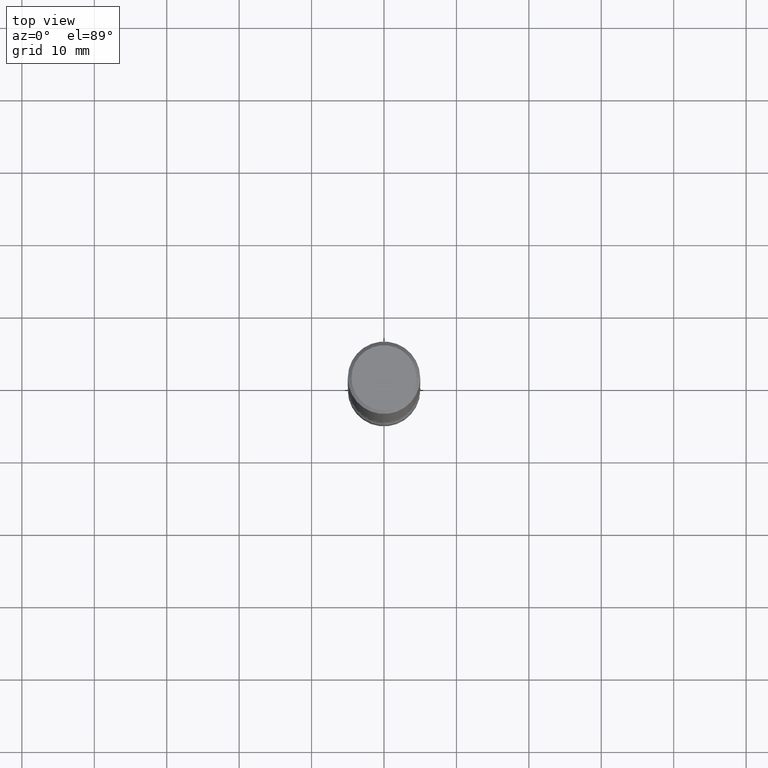
[diagram: clean part render]
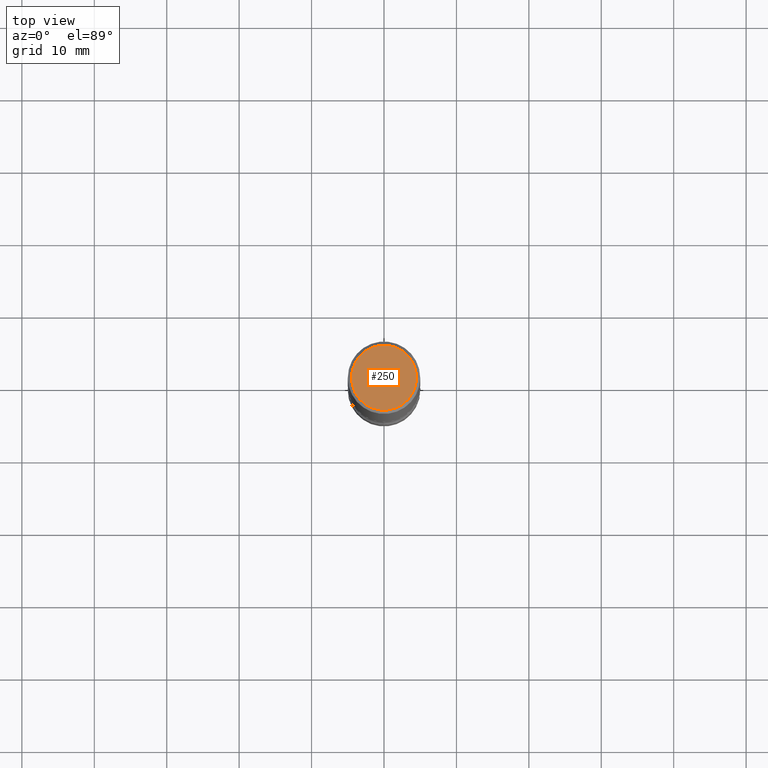
[diagram: same view with one face highlighted and labeled with its STEP entity id]
A machine part, top view. The second image highlights one B-rep face of the part: STEP entity #250.
In plain terms, the highlighted planar face has unit normal (0, -0, -1).
Its self-contained STEP definition (entity closure, byte-faithful):
#3 = AXIS2_PLACEMENT_3D ( 'NONE', #111, #400, #6 ) ;
#6 = DIRECTION ( 'NONE',  ( -1.000000000000000000, 6.982962677686265922E-15, -4.876176775795935793E-29 ) ) ;
#22 = EDGE_CURVE ( 'NONE', #365, #119, #503, .T. ) ;
#31 = EDGE_LOOP ( 'NONE', ( #404, #123 ) ) ;
#37 = DIRECTION ( 'NONE',  ( 1.000000000000000000, -6.982962677686266711E-15, 4.875932113059883053E-29 ) ) ;
#52 = DIRECTION ( 'NONE',  ( 1.000000000000000000, -6.982962677686266711E-15, 4.875932113059883053E-29 ) ) ;
#96 = PLANE ( 'NONE',  #3 ) ;
#103 = CARTESIAN_POINT ( 'NONE',  ( -1.043851414335219820E-46, 1.490343170380447200E-32, 4.268512490100411279E-18 ) ) ;
#111 = CARTESIAN_POINT ( 'NONE',  ( 1.234936949548814815E-15, 0.1768499999999998129, -6.153342185293594620E-16 ) ) ;
#119 = VERTEX_POINT ( 'NONE', #476 ) ;
#123 = ORIENTED_EDGE ( 'NONE', *, *, #22, .T. ) ;
#190 = AXIS2_PLACEMENT_3D ( 'NONE', #103, #403, #52 ) ;
#211 = CIRCLE ( 'NONE', #465, 0.1768499999999998129 ) ;
#239 = CARTESIAN_POINT ( 'NONE',  ( 0.1768499999999998129, -1.316798864272041155E-15, 4.268512490109333727E-18 ) ) ;
#250 = ADVANCED_FACE ( 'NONE', ( #530 ), #96, .F. ) ;
#365 = VERTEX_POINT ( 'NONE', #239 ) ;
#400 = DIRECTION ( 'NONE',  ( 2.438088387897960049E-29, -3.491481338843145188E-15, -1.000000000000000000 ) ) ;
#403 = DIRECTION ( 'NONE',  ( -2.445468806185136597E-29, 3.491481338843145583E-15, 1.000000000000000000 ) ) ;
#404 = ORIENTED_EDGE ( 'NONE', *, *, #472, .T. ) ;
#462 = CARTESIAN_POINT ( 'NONE',  ( -1.043851414335219820E-46, 1.490343170380447200E-32, 4.268512490100411279E-18 ) ) ;
#465 = AXIS2_PLACEMENT_3D ( 'NONE', #462, #512, #37 ) ;
#472 = EDGE_CURVE ( 'NONE', #119, #365, #211, .T. ) ;
#476 = CARTESIAN_POINT ( 'NONE',  ( -0.1768499999999998129, 1.269851762937246267E-15, 4.268512490091652920E-18 ) ) ;
#503 = CIRCLE ( 'NONE', #190, 0.1768499999999998129 ) ;
#512 = DIRECTION ( 'NONE',  ( -2.445468806185136597E-29, 3.491481338843145583E-15, 1.000000000000000000 ) ) ;
#530 = FACE_OUTER_BOUND ( 'NONE', #31, .T. ) ;